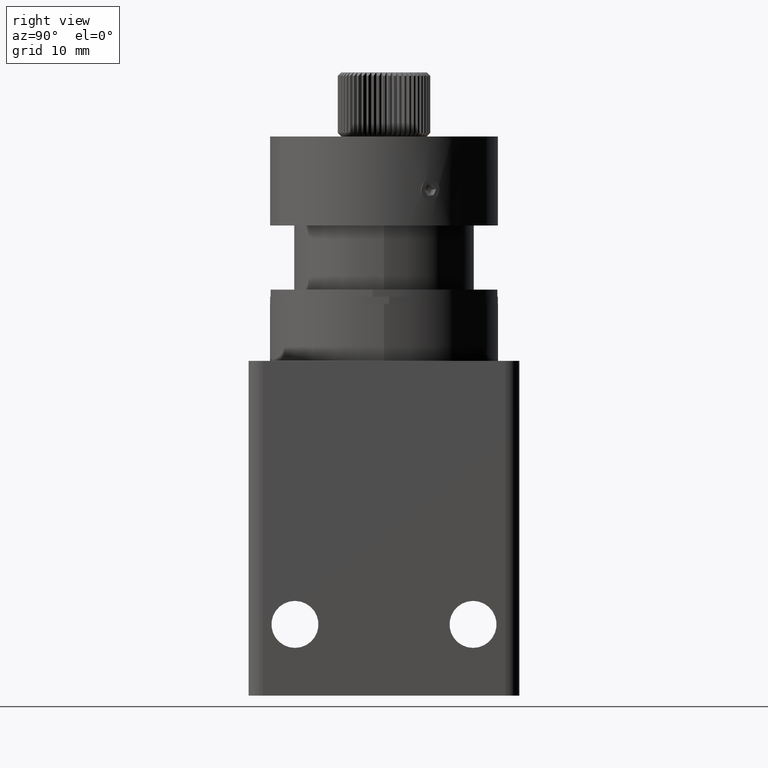
[diagram: clean part render]
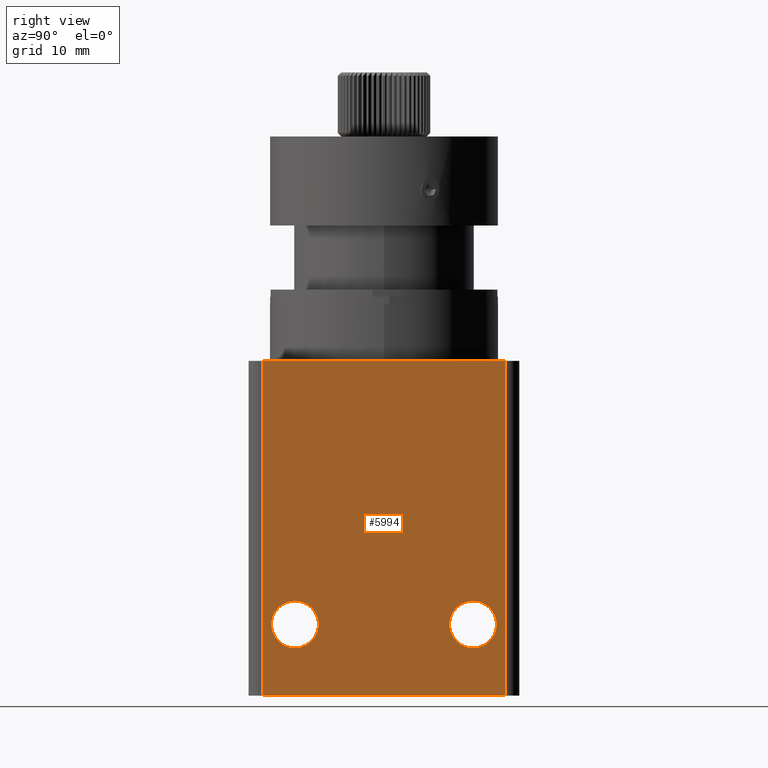
[diagram: same view with one face highlighted and labeled with its STEP entity id]
A machine part, right view. The second image highlights one B-rep face of the part: STEP entity #5994.
In plain terms, the highlighted planar face has unit normal (-1, -0, 0).
Its self-contained STEP definition (entity closure, byte-faithful):
#11 = PLANE ( 'NONE',  #2819 ) ;
#16 = CARTESIAN_POINT ( 'NONE',  ( 56.62291667820559800, 35.78689962133746100, 3.227493172729717600 ) ) ;
#17 = AXIS2_PLACEMENT_3D ( 'NONE', #5182, #1324, #4505 ) ;
#199 = ORIENTED_EDGE ( 'NONE', *, *, #5656, .T. ) ;
#200 = CIRCLE ( 'NONE', #17, 3.299999999999990500 ) ;
#285 = VERTEX_POINT ( 'NONE', #8117 ) ;
#410 = DIRECTION ( 'NONE',  ( -1.000000000000000000, -0.0000000000000000000, -0.0000000000000000000 ) ) ;
#502 = VECTOR ( 'NONE', #7374, 1000.000000000000000 ) ;
#593 = EDGE_CURVE ( 'NONE', #4777, #5369, #200, .T. ) ;
#769 = EDGE_CURVE ( 'NONE', #993, #285, #7243, .T. ) ;
#932 = FACE_OUTER_BOUND ( 'NONE', #3304, .T. ) ;
#993 = VERTEX_POINT ( 'NONE', #7053 ) ;
#1082 = DIRECTION ( 'NONE',  ( -1.000000000000000000, -0.0000000000000000000, -0.0000000000000000000 ) ) ;
#1125 = CARTESIAN_POINT ( 'NONE',  ( 56.62291667820559800, 65.28689962133746900, 13.22749317272971600 ) ) ;
#1324 = DIRECTION ( 'NONE',  ( -1.000000000000000000, -0.0000000000000000000, -0.0000000000000000000 ) ) ;
#1389 = EDGE_LOOP ( 'NONE', ( #7495, #5088 ) ) ;
#1488 = AXIS2_PLACEMENT_3D ( 'NONE', #1711, #1082, #6189 ) ;
#1623 = LINE ( 'NONE', #5442, #502 ) ;
#1711 = CARTESIAN_POINT ( 'NONE',  ( 56.62291667820559800, 40.28689962133746100, 13.22749317272971900 ) ) ;
#1790 = DIRECTION ( 'NONE',  ( -3.652049423109068300E-016, 1.000000000000000000, -0.0000000000000000000 ) ) ;
#2012 = ORIENTED_EDGE ( 'NONE', *, *, #593, .T. ) ;
#2079 = CARTESIAN_POINT ( 'NONE',  ( 56.62291667820558400, 69.78689962133746900, 50.22749317272971600 ) ) ;
#2386 = EDGE_LOOP ( 'NONE', ( #2012, #199 ) ) ;
#2419 = EDGE_CURVE ( 'NONE', #7817, #6918, #5617, .T. ) ;
#2440 = CARTESIAN_POINT ( 'NONE',  ( 56.62291667820559800, 35.78689962133746100, 50.22749317272971600 ) ) ;
#2444 = CARTESIAN_POINT ( 'NONE',  ( 56.62291667820558400, 69.78689962133746900, 50.22749317272971600 ) ) ;
#2676 = DIRECTION ( 'NONE',  ( -1.000000000000000000, -3.652049423109068300E-016, 0.0000000000000000000 ) ) ;
#2819 = AXIS2_PLACEMENT_3D ( 'NONE', #3250, #2676, #3307 ) ;
#2830 = CARTESIAN_POINT ( 'NONE',  ( 56.62291667820559800, 65.28689962133746900, 16.52749317272970600 ) ) ;
#2895 = VERTEX_POINT ( 'NONE', #2079 ) ;
#2948 = DIRECTION ( 'NONE',  ( 0.0000000000000000000, 0.0000000000000000000, 1.000000000000000000 ) ) ;
#2973 = ORIENTED_EDGE ( 'NONE', *, *, #4266, .T. ) ;
#3080 = AXIS2_PLACEMENT_3D ( 'NONE', #7411, #6227, #2948 ) ;
#3238 = VECTOR ( 'NONE', #7487, 1000.000000000000000 ) ;
#3250 = CARTESIAN_POINT ( 'NONE',  ( 56.62291667820558400, 71.78689962133746900, 50.22749317272971600 ) ) ;
#3304 = EDGE_LOOP ( 'NONE', ( #7499, #4206, #2973, #5006 ) ) ;
#3307 = DIRECTION ( 'NONE',  ( 3.652049423109068300E-016, -1.000000000000000000, 0.0000000000000000000 ) ) ;
#3542 = VECTOR ( 'NONE', #1790, 1000.000000000000000 ) ;
#3719 = EDGE_CURVE ( 'NONE', #285, #993, #6056, .T. ) ;
#4206 = ORIENTED_EDGE ( 'NONE', *, *, #2419, .T. ) ;
#4265 = AXIS2_PLACEMENT_3D ( 'NONE', #1125, #410, #4884 ) ;
#4266 = EDGE_CURVE ( 'NONE', #6918, #5634, #1623, .T. ) ;
#4347 = CIRCLE ( 'NONE', #4265, 3.299999999999990500 ) ;
#4505 = DIRECTION ( 'NONE',  ( 0.0000000000000000000, 0.0000000000000000000, 1.000000000000000000 ) ) ;
#4748 = FACE_BOUND ( 'NONE', #2386, .T. ) ;
#4777 = VERTEX_POINT ( 'NONE', #2830 ) ;
#4855 = CARTESIAN_POINT ( 'NONE',  ( 56.62291667820558400, 69.78689962133746900, 3.227493172729717600 ) ) ;
#4884 = DIRECTION ( 'NONE',  ( 0.0000000000000000000, 0.0000000000000000000, 1.000000000000000000 ) ) ;
#4900 = CARTESIAN_POINT ( 'NONE',  ( 56.62291667820558400, 71.78689962133746900, 50.22749317272971600 ) ) ;
#4947 = LINE ( 'NONE', #2444, #3238 ) ;
#5006 = ORIENTED_EDGE ( 'NONE', *, *, #6249, .T. ) ;
#5088 = ORIENTED_EDGE ( 'NONE', *, *, #3719, .T. ) ;
#5182 = CARTESIAN_POINT ( 'NONE',  ( 56.62291667820559800, 65.28689962133746900, 13.22749317272971600 ) ) ;
#5369 = VERTEX_POINT ( 'NONE', #6129 ) ;
#5442 = CARTESIAN_POINT ( 'NONE',  ( 56.62291667820558400, 71.78689962133746900, 3.227493172729717600 ) ) ;
#5617 = LINE ( 'NONE', #8003, #7118 ) ;
#5634 = VERTEX_POINT ( 'NONE', #4855 ) ;
#5656 = EDGE_CURVE ( 'NONE', #5369, #4777, #4347, .T. ) ;
#5994 = ADVANCED_FACE ( 'NONE', ( #7054, #4748, #932 ), #11, .F. ) ;
#6056 = CIRCLE ( 'NONE', #3080, 3.299999999999990500 ) ;
#6129 = CARTESIAN_POINT ( 'NONE',  ( 56.62291667820559800, 65.28689962133746900, 9.927493172729725800 ) ) ;
#6189 = DIRECTION ( 'NONE',  ( 0.0000000000000000000, 0.0000000000000000000, 1.000000000000000000 ) ) ;
#6200 = EDGE_CURVE ( 'NONE', #7817, #2895, #6857, .T. ) ;
#6227 = DIRECTION ( 'NONE',  ( -1.000000000000000000, -0.0000000000000000000, -0.0000000000000000000 ) ) ;
#6249 = EDGE_CURVE ( 'NONE', #5634, #2895, #4947, .T. ) ;
#6857 = LINE ( 'NONE', #4900, #3542 ) ;
#6918 = VERTEX_POINT ( 'NONE', #16 ) ;
#7053 = CARTESIAN_POINT ( 'NONE',  ( 56.62291667820559800, 40.28689962133746100, 16.52749317272970900 ) ) ;
#7054 = FACE_BOUND ( 'NONE', #1389, .T. ) ;
#7118 = VECTOR ( 'NONE', #7320, 1000.000000000000000 ) ;
#7243 = CIRCLE ( 'NONE', #1488, 3.299999999999990500 ) ;
#7320 = DIRECTION ( 'NONE',  ( 0.0000000000000000000, 0.0000000000000000000, -1.000000000000000000 ) ) ;
#7374 = DIRECTION ( 'NONE',  ( -3.652049423109068300E-016, 1.000000000000000000, -0.0000000000000000000 ) ) ;
#7411 = CARTESIAN_POINT ( 'NONE',  ( 56.62291667820559800, 40.28689962133746100, 13.22749317272971900 ) ) ;
#7487 = DIRECTION ( 'NONE',  ( -0.0000000000000000000, -0.0000000000000000000, 1.000000000000000000 ) ) ;
#7495 = ORIENTED_EDGE ( 'NONE', *, *, #769, .T. ) ;
#7499 = ORIENTED_EDGE ( 'NONE', *, *, #6200, .F. ) ;
#7817 = VERTEX_POINT ( 'NONE', #2440 ) ;
#8003 = CARTESIAN_POINT ( 'NONE',  ( 56.62291667820559800, 35.78689962133746100, 50.22749317272971600 ) ) ;
#8117 = CARTESIAN_POINT ( 'NONE',  ( 56.62291667820559800, 40.28689962133746100, 9.927493172729729300 ) ) ;